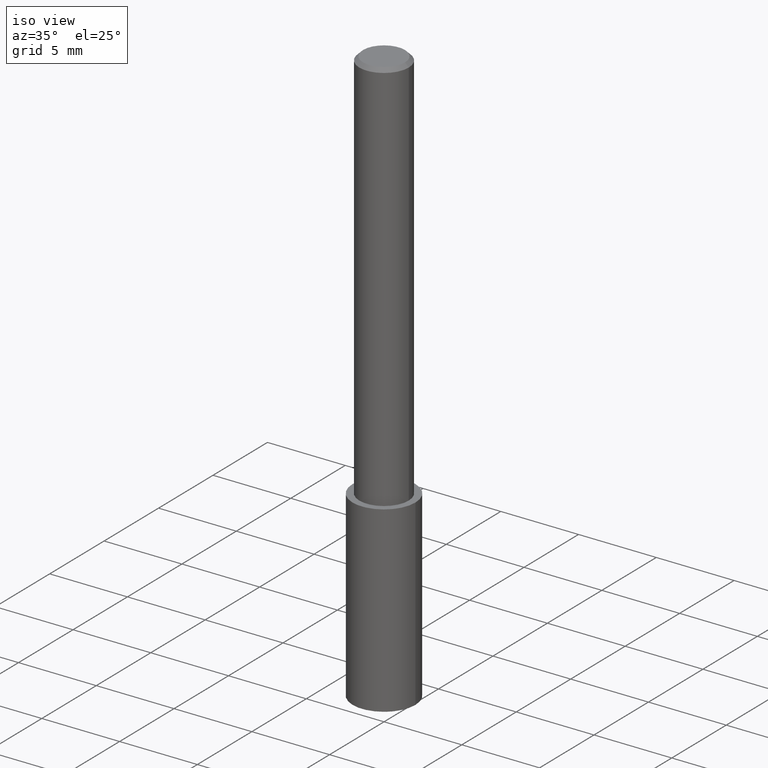
[diagram: clean part render]
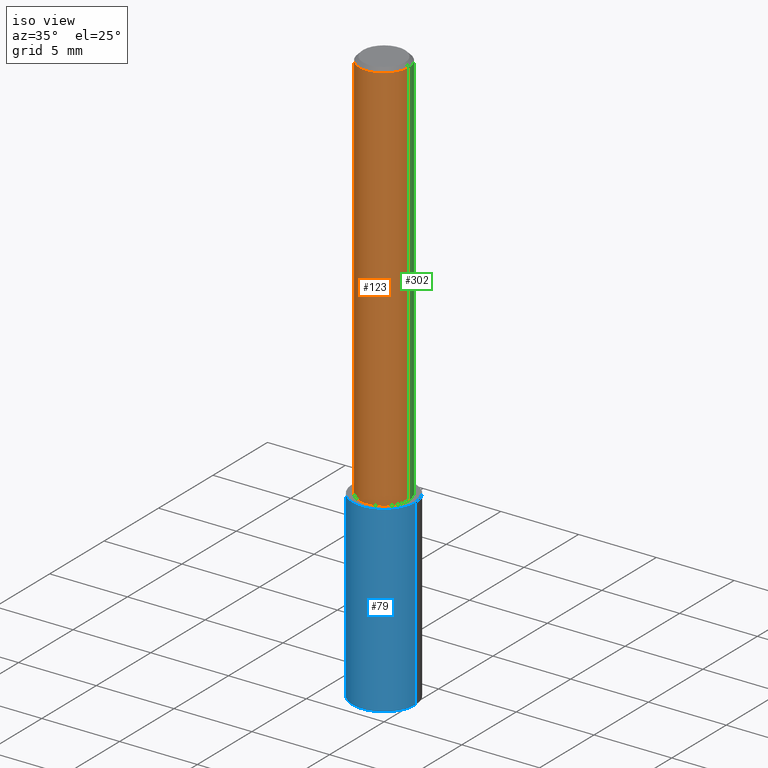
[diagram: same view with three faces highlighted in distinct colors, each labeled with its STEP entity id]
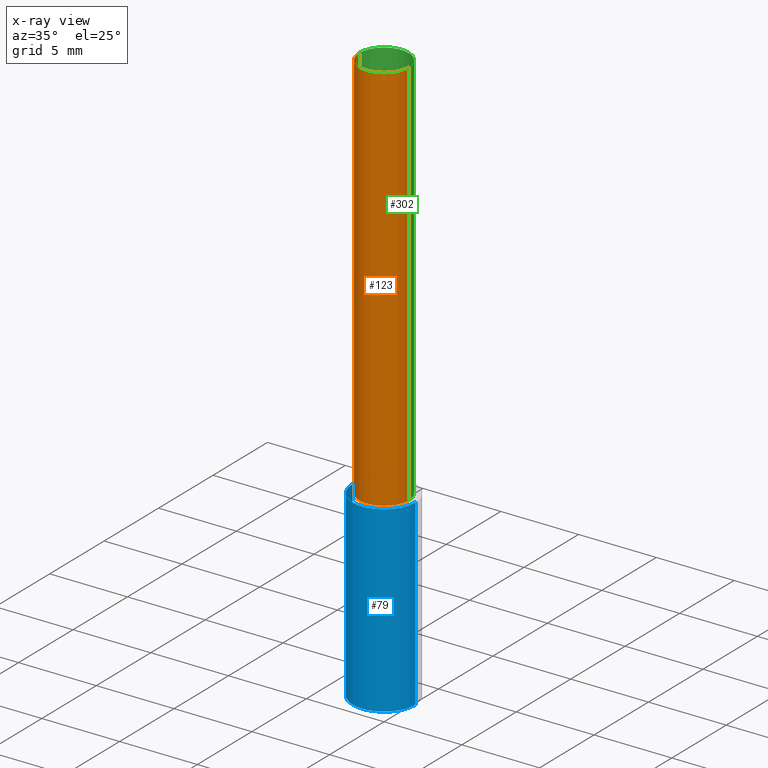
[diagram: x-ray of the same camera — body ghosted, the three highlighted faces saturated]
A machine part, iso view with three faces highlighted in distinct colors.
The next image is the same camera in x-ray (body ghosted, the three faces saturated) — at least one of them is partly hidden behind the body in this view.
Their STEP definitions:

[orange] entity #123 — the highlighted cylindrical surface (edge-blend (fillet) strip) has radius 1.5875 mm, axis along (-0, 0, 1).
#4 = VERTEX_POINT ( 'NONE', #175 ) ;
#10 = DIRECTION ( 'NONE',  ( -2.445468806185136597E-29, 3.491481338843145583E-15, 1.000000000000000000 ) ) ;
#18 = CARTESIAN_POINT ( 'NONE',  ( 2.445468806185137438E-29, -3.491481338843146371E-15, -1.000000000000000222 ) ) ;
#29 = EDGE_LOOP ( 'NONE', ( #46, #225, #101, #257 ) ) ;
#41 = VECTOR ( 'NONE', #299, 39.37007874015748143 ) ;
#46 = ORIENTED_EDGE ( 'NONE', *, *, #188, .F. ) ;
#47 = CIRCLE ( 'NONE', #246, 0.06250000000000012490 ) ;
#51 = AXIS2_PLACEMENT_3D ( 'NONE', #64, #171, #281 ) ;
#59 = EDGE_CURVE ( 'NONE', #314, #4, #326, .T. ) ;
#64 = CARTESIAN_POINT ( 'NONE',  ( 2.292627005798580623E-31, -3.273263755165470184E-17, -0.009375000000000060368 ) ) ;
#69 = CARTESIAN_POINT ( 'NONE',  ( -0.06250000000000012490, -1.318017778347335489E-15, -1.000000000000000222 ) ) ;
#82 = CARTESIAN_POINT ( 'NONE',  ( -0.06250000000000006939, 4.440892098500631092E-16, -3.074334431409319267E-30 ) ) ;
#90 = DIRECTION ( 'NONE',  ( 1.000000000000000000, -6.982962677686264344E-15, 0.000000000000000000 ) ) ;
#93 = DIRECTION ( 'NONE',  ( -2.445468806185136877E-29, 3.491481338843145188E-15, 1.000000000000000000 ) ) ;
#101 = ORIENTED_EDGE ( 'NONE', *, *, #120, .T. ) ;
#113 = CARTESIAN_POINT ( 'NONE',  ( 0.06250000000000012490, -3.927916506198539224E-15, -1.000000000000000222 ) ) ;
#120 = EDGE_CURVE ( 'NONE', #222, #4, #252, .T. ) ;
#121 = FACE_OUTER_BOUND ( 'NONE', #29, .T. ) ;
#123 = ADVANCED_FACE ( 'NONE', ( #121 ), #330, .T. ) ;
#149 = VERTEX_POINT ( 'NONE', #69 ) ;
#151 = CARTESIAN_POINT ( 'NONE',  ( 0.06250000000000006939, -4.364351673553921624E-16, 3.047610484872463374E-30 ) ) ;
#158 = EDGE_CURVE ( 'NONE', #149, #222, #47, .T. ) ;
#161 = AXIS2_PLACEMENT_3D ( 'NONE', #305, #309, #168 ) ;
#168 = DIRECTION ( 'NONE',  ( 1.000000000000000000, -6.982962677686266711E-15, 4.876176775795935793E-29 ) ) ;
#171 = DIRECTION ( 'NONE',  ( -2.445468806185136597E-29, 3.491481338843145583E-15, 1.000000000000000000 ) ) ;
#175 = CARTESIAN_POINT ( 'NONE',  ( 0.06250000000000000000, -4.691678049070463404E-16, -0.009375000000000060368 ) ) ;
#188 = EDGE_CURVE ( 'NONE', #149, #314, #322, .T. ) ;
#222 = VERTEX_POINT ( 'NONE', #113 ) ;
#225 = ORIENTED_EDGE ( 'NONE', *, *, #158, .T. ) ;
#244 = CARTESIAN_POINT ( 'NONE',  ( -0.06250000000000000000, -1.318017778347336672E-15, -0.009375000000000060368 ) ) ;
#246 = AXIS2_PLACEMENT_3D ( 'NONE', #18, #10, #90 ) ;
#252 = LINE ( 'NONE', #151, #287 ) ;
#257 = ORIENTED_EDGE ( 'NONE', *, *, #59, .F. ) ;
#281 = DIRECTION ( 'NONE',  ( 1.000000000000000000, -6.982962677686266711E-15, 0.000000000000000000 ) ) ;
#287 = VECTOR ( 'NONE', #93, 39.37007874015748143 ) ;
#299 = DIRECTION ( 'NONE',  ( -2.445468806185136877E-29, 3.491481338843145188E-15, 1.000000000000000000 ) ) ;
#305 = CARTESIAN_POINT ( 'NONE',  ( 0.000000000000000000, 0.000000000000000000, 0.000000000000000000 ) ) ;
#309 = DIRECTION ( 'NONE',  ( -2.445468806185136597E-29, 3.491481338843145583E-15, 1.000000000000000000 ) ) ;
#314 = VERTEX_POINT ( 'NONE', #244 ) ;
#322 = LINE ( 'NONE', #82, #41 ) ;
#326 = CIRCLE ( 'NONE', #51, 0.06250000000000000000 ) ;
#330 = CYLINDRICAL_SURFACE ( 'NONE', #161, 0.06250000000000006939 ) ;

[blue] entity #79 — the highlighted cylindrical surface (partial cylindrical patch) has radius 2.0193 mm, axis along (-0, 0, 1).
#7 = EDGE_CURVE ( 'NONE', #297, #228, #116, .T. ) ;
#16 = EDGE_CURVE ( 'NONE', #237, #63, #312, .T. ) ;
#21 = ORIENTED_EDGE ( 'NONE', *, *, #183, .F. ) ;
#33 = CARTESIAN_POINT ( 'NONE',  ( -0.07950000000000000122, -4.542906226650117336E-15, -1.462928541176677699 ) ) ;
#40 = DIRECTION ( 'NONE',  ( -2.445468806185136597E-29, 3.491481338843145583E-15, 1.000000000000000000 ) ) ;
#43 = FACE_OUTER_BOUND ( 'NONE', #233, .T. ) ;
#45 = CYLINDRICAL_SURFACE ( 'NONE', #260, 0.07950000000000000122 ) ;
#48 = EDGE_CURVE ( 'NONE', #297, #237, #81, .T. ) ;
#63 = VERTEX_POINT ( 'NONE', #230 ) ;
#70 = CARTESIAN_POINT ( 'NONE',  ( 0.07950000000000000122, -4.046626871719204622E-15, -1.000000000000000222 ) ) ;
#79 = ADVANCED_FACE ( 'NONE', ( #43 ), #45, .T. ) ;
#81 = CIRCLE ( 'NONE', #98, 0.07950000000000000122 ) ;
#86 = DIRECTION ( 'NONE',  ( -2.445468806185136597E-29, 3.491481338843145583E-15, 1.000000000000000000 ) ) ;
#92 = DIRECTION ( 'NONE',  ( -2.445468806185136597E-29, 3.491481338843145583E-15, 1.000000000000000000 ) ) ;
#98 = AXIS2_PLACEMENT_3D ( 'NONE', #146, #92, #219 ) ;
#116 = LINE ( 'NONE', #207, #308 ) ;
#124 = CARTESIAN_POINT ( 'NONE',  ( 2.445468806185137438E-29, -3.491481338843146371E-15, -1.000000000000000222 ) ) ;
#129 = ORIENTED_EDGE ( 'NONE', *, *, #48, .T. ) ;
#135 = VECTOR ( 'NONE', #218, 39.37007874015748143 ) ;
#141 = CARTESIAN_POINT ( 'NONE',  ( 2.445468806185136877E-29, -3.491481338843145977E-15, -1.000000000000000222 ) ) ;
#146 = CARTESIAN_POINT ( 'NONE',  ( 3.577546113125493267E-29, -5.107787701579397091E-15, -1.462928541176677699 ) ) ;
#154 = ORIENTED_EDGE ( 'NONE', *, *, #7, .F. ) ;
#183 = EDGE_CURVE ( 'NONE', #228, #63, #220, .T. ) ;
#207 = CARTESIAN_POINT ( 'NONE',  ( -0.07950000000000000122, -2.926599863913867011E-15, -1.000000000000000222 ) ) ;
#218 = DIRECTION ( 'NONE',  ( -2.445468806185136877E-29, 3.491481338843145188E-15, 1.000000000000000000 ) ) ;
#219 = DIRECTION ( 'NONE',  ( 1.000000000000000000, -6.982962677686265922E-15, 0.000000000000000000 ) ) ;
#220 = CIRCLE ( 'NONE', #293, 0.07950000000000000122 ) ;
#228 = VERTEX_POINT ( 'NONE', #321 ) ;
#230 = CARTESIAN_POINT ( 'NONE',  ( 0.07950000000000000122, -4.046626871719203833E-15, -1.000000000000000222 ) ) ;
#233 = EDGE_LOOP ( 'NONE', ( #154, #129, #317, #21 ) ) ;
#237 = VERTEX_POINT ( 'NONE', #262 ) ;
#248 = DIRECTION ( 'NONE',  ( -2.445468806185136877E-29, 3.491481338843145188E-15, 1.000000000000000000 ) ) ;
#260 = AXIS2_PLACEMENT_3D ( 'NONE', #124, #40, #303 ) ;
#262 = CARTESIAN_POINT ( 'NONE',  ( 0.07950000000000000122, -5.662933234455454158E-15, -1.462928541176677699 ) ) ;
#271 = DIRECTION ( 'NONE',  ( 1.000000000000000000, -6.982962677686265922E-15, 0.000000000000000000 ) ) ;
#293 = AXIS2_PLACEMENT_3D ( 'NONE', #141, #86, #271 ) ;
#297 = VERTEX_POINT ( 'NONE', #33 ) ;
#303 = DIRECTION ( 'NONE',  ( 1.000000000000000000, -6.982962677686265922E-15, 0.000000000000000000 ) ) ;
#308 = VECTOR ( 'NONE', #248, 39.37007874015748143 ) ;
#312 = LINE ( 'NONE', #70, #135 ) ;
#317 = ORIENTED_EDGE ( 'NONE', *, *, #16, .T. ) ;
#321 = CARTESIAN_POINT ( 'NONE',  ( -0.07950000000000000122, -3.734753045281991384E-15, -1.000000000000000222 ) ) ;

[green] entity #302 — the highlighted cylindrical surface (edge-blend (fillet) strip) has radius 1.5875 mm, axis along (-0, 0, 1).
#4 = VERTEX_POINT ( 'NONE', #175 ) ;
#22 = EDGE_CURVE ( 'NONE', #4, #314, #318, .T. ) ;
#41 = VECTOR ( 'NONE', #299, 39.37007874015748143 ) ;
#49 = EDGE_LOOP ( 'NONE', ( #258, #210, #163, #156 ) ) ;
#54 = EDGE_CURVE ( 'NONE', #222, #149, #157, .T. ) ;
#55 = AXIS2_PLACEMENT_3D ( 'NONE', #328, #332, #89 ) ;
#68 = AXIS2_PLACEMENT_3D ( 'NONE', #138, #267, #137 ) ;
#69 = CARTESIAN_POINT ( 'NONE',  ( -0.06250000000000012490, -1.318017778347335489E-15, -1.000000000000000222 ) ) ;
#82 = CARTESIAN_POINT ( 'NONE',  ( -0.06250000000000006939, 4.440892098500631092E-16, -3.074334431409319267E-30 ) ) ;
#85 = FACE_OUTER_BOUND ( 'NONE', #49, .T. ) ;
#89 = DIRECTION ( 'NONE',  ( 1.000000000000000000, -6.982962677686264344E-15, 0.000000000000000000 ) ) ;
#93 = DIRECTION ( 'NONE',  ( -2.445468806185136877E-29, 3.491481338843145188E-15, 1.000000000000000000 ) ) ;
#113 = CARTESIAN_POINT ( 'NONE',  ( 0.06250000000000012490, -3.927916506198539224E-15, -1.000000000000000222 ) ) ;
#120 = EDGE_CURVE ( 'NONE', #222, #4, #252, .T. ) ;
#137 = DIRECTION ( 'NONE',  ( 1.000000000000000000, -6.982962677686266711E-15, 4.876176775795935793E-29 ) ) ;
#138 = CARTESIAN_POINT ( 'NONE',  ( 0.000000000000000000, 0.000000000000000000, 0.000000000000000000 ) ) ;
#149 = VERTEX_POINT ( 'NONE', #69 ) ;
#151 = CARTESIAN_POINT ( 'NONE',  ( 0.06250000000000006939, -4.364351673553921624E-16, 3.047610484872463374E-30 ) ) ;
#156 = ORIENTED_EDGE ( 'NONE', *, *, #120, .F. ) ;
#157 = CIRCLE ( 'NONE', #55, 0.06250000000000012490 ) ;
#163 = ORIENTED_EDGE ( 'NONE', *, *, #22, .F. ) ;
#175 = CARTESIAN_POINT ( 'NONE',  ( 0.06250000000000000000, -4.691678049070463404E-16, -0.009375000000000060368 ) ) ;
#177 = CARTESIAN_POINT ( 'NONE',  ( 2.292627005798580623E-31, -3.273263755165470184E-17, -0.009375000000000060368 ) ) ;
#188 = EDGE_CURVE ( 'NONE', #149, #314, #322, .T. ) ;
#192 = CYLINDRICAL_SURFACE ( 'NONE', #68, 0.06250000000000006939 ) ;
#198 = DIRECTION ( 'NONE',  ( 1.000000000000000000, -6.982962677686266711E-15, 0.000000000000000000 ) ) ;
#202 = AXIS2_PLACEMENT_3D ( 'NONE', #177, #304, #198 ) ;
#210 = ORIENTED_EDGE ( 'NONE', *, *, #188, .T. ) ;
#222 = VERTEX_POINT ( 'NONE', #113 ) ;
#244 = CARTESIAN_POINT ( 'NONE',  ( -0.06250000000000000000, -1.318017778347336672E-15, -0.009375000000000060368 ) ) ;
#252 = LINE ( 'NONE', #151, #287 ) ;
#258 = ORIENTED_EDGE ( 'NONE', *, *, #54, .T. ) ;
#267 = DIRECTION ( 'NONE',  ( -2.445468806185136597E-29, 3.491481338843145583E-15, 1.000000000000000000 ) ) ;
#287 = VECTOR ( 'NONE', #93, 39.37007874015748143 ) ;
#299 = DIRECTION ( 'NONE',  ( -2.445468806185136877E-29, 3.491481338843145188E-15, 1.000000000000000000 ) ) ;
#302 = ADVANCED_FACE ( 'NONE', ( #85 ), #192, .T. ) ;
#304 = DIRECTION ( 'NONE',  ( -2.445468806185136597E-29, 3.491481338843145583E-15, 1.000000000000000000 ) ) ;
#314 = VERTEX_POINT ( 'NONE', #244 ) ;
#318 = CIRCLE ( 'NONE', #202, 0.06250000000000000000 ) ;
#322 = LINE ( 'NONE', #82, #41 ) ;
#328 = CARTESIAN_POINT ( 'NONE',  ( 2.445468806185137438E-29, -3.491481338843146371E-15, -1.000000000000000222 ) ) ;
#332 = DIRECTION ( 'NONE',  ( -2.445468806185136597E-29, 3.491481338843145583E-15, 1.000000000000000000 ) ) ;